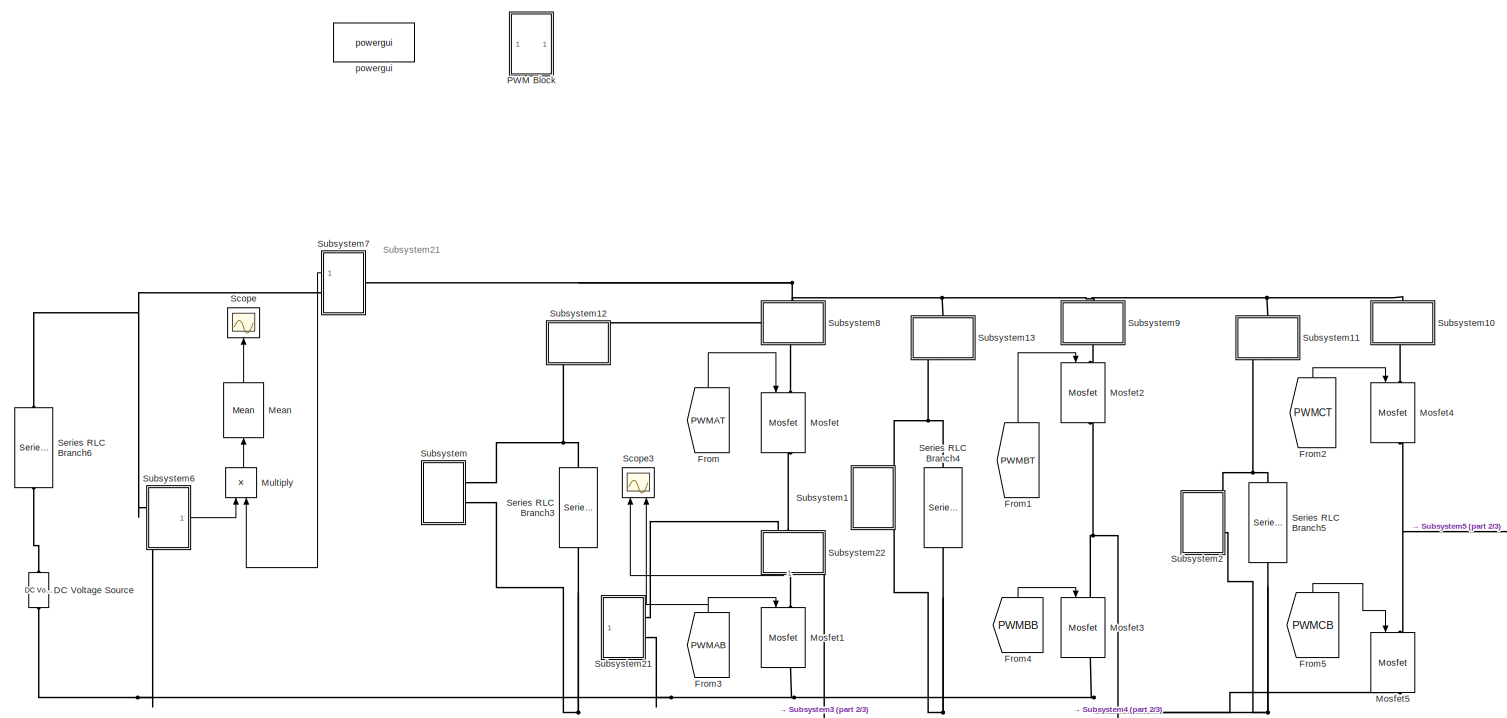
[diagram: root canvas - part 1/3, full width, top band]
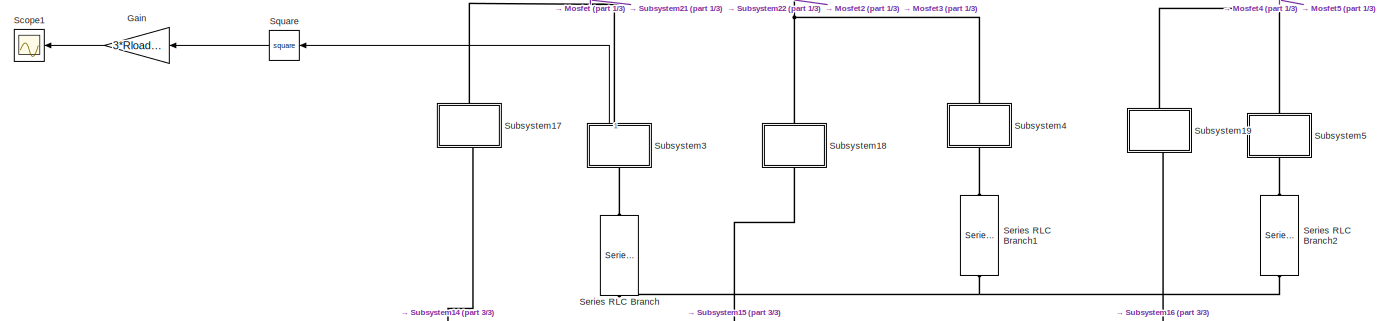
[diagram: root canvas - part 2/3, central region]
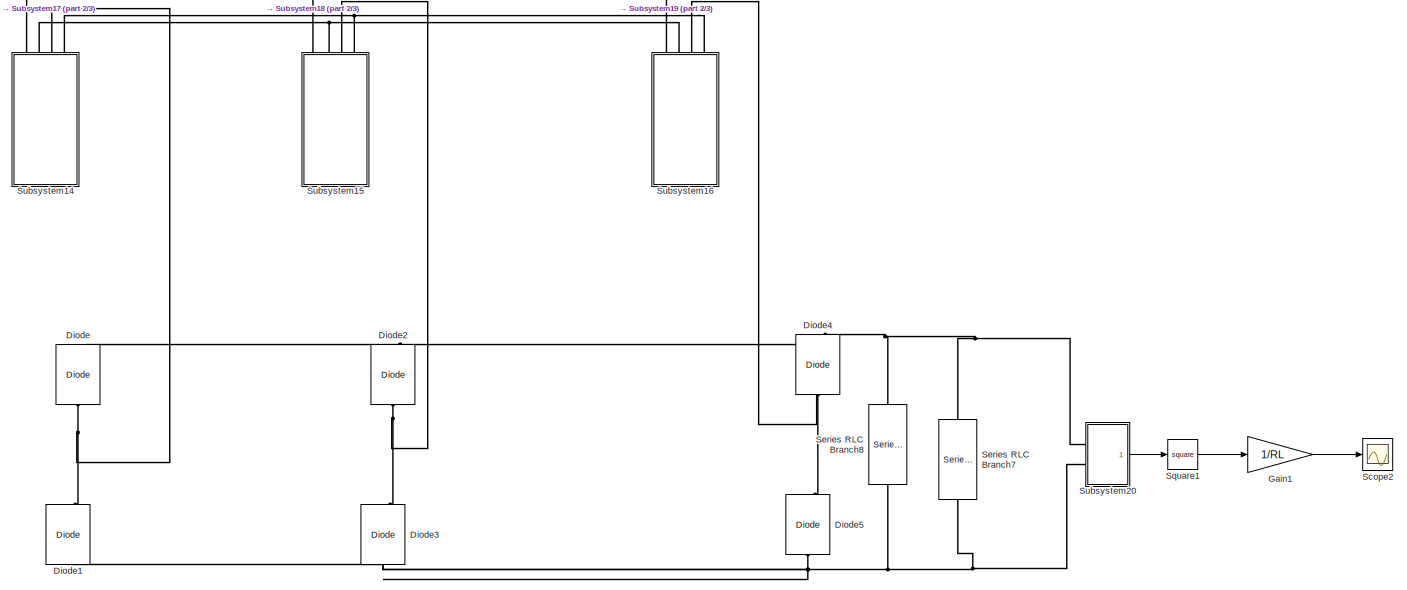
[diagram: root canvas - part 3/3, bottom center region]
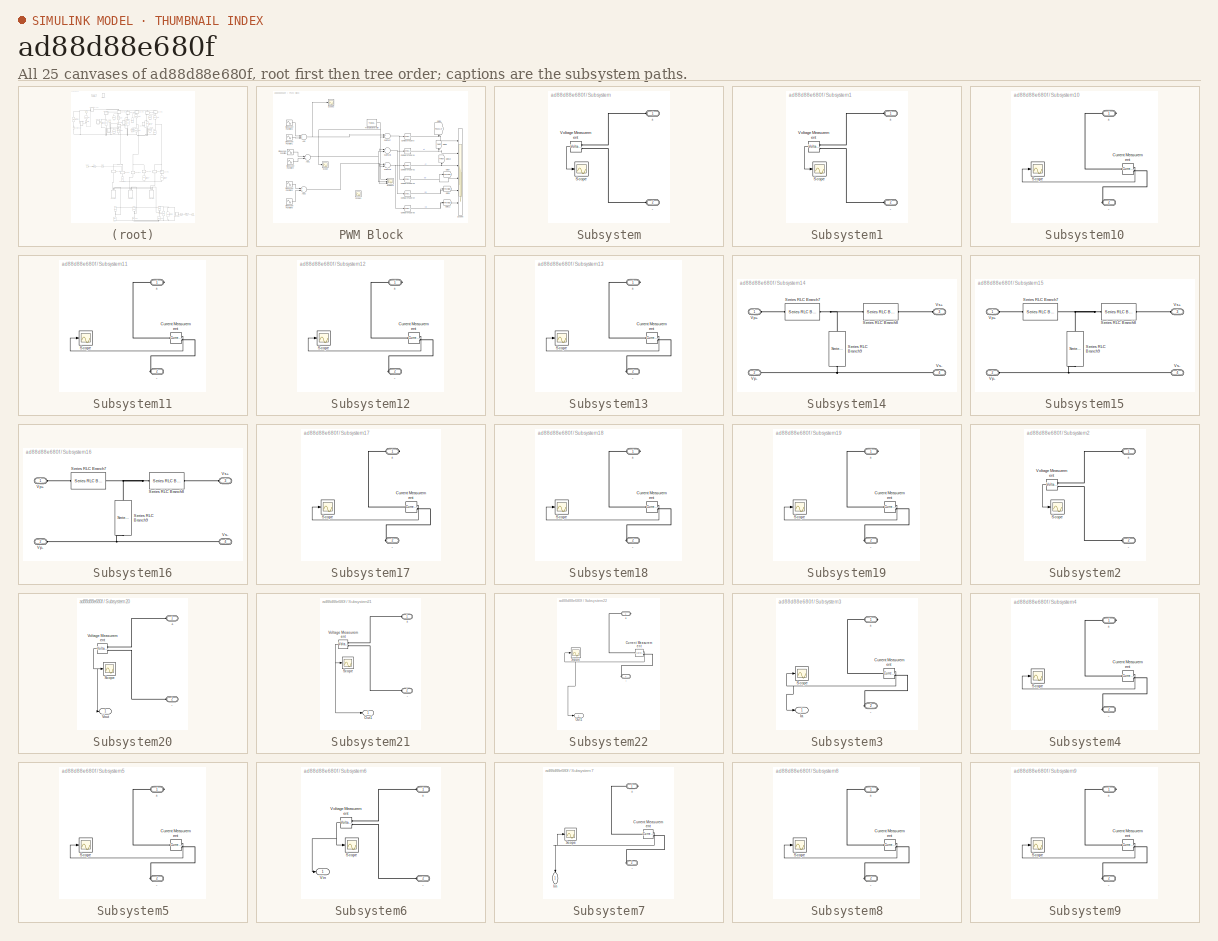
[diagram: thumbnail index - all 25 canvases of the model, root first then tree order]
MODEL slx_ad88d88e680f
KIND model
CONFIG AbsTol = auto
CONFIG EnableMultiTasking = off
CONFIG FixedStep = SampleTime
CONFIG MaxStep = auto
CONFIG MinStep = auto
CONFIG RelTol = 1e-3
CONFIG SampleTimeConstraint = Unconstrained
CONFIG Solver = FixedStepDiscrete
CONFIG SolverName = FixedStepDiscrete
CONFIG StartTime = 0.0
CONFIG StopTime = Tfinal
BLOCK [Reference] DC Voltage Source  REF=powerlib/Electrical
Sources/DC Voltage Source
  Ports = [0, 0, 0, 0, 0, 1, 1]
  SourceBlock = powerlib/Electrical\nSources/DC Voltage Source
  SourceProductBaseCode = PS
  SourceProductName = Simscape Power Systems
  SourceType = DC Voltage Source
BLOCK [Reference] Diode  REF=powerlib/Power
Electronics/Diode
  Ports = [0, 1, 0, 0, 0, 1, 1]
  SourceBlock = powerlib/Power\nElectronics/Diode
  SourceProductBaseCode = PS
  SourceProductName = Simscape Power Systems
  SourceType = Diode
BLOCK [Reference] Diode1  REF=powerlib/Power
Electronics/Diode
  Ports = [0, 1, 0, 0, 0, 1, 1]
  SourceBlock = powerlib/Power\nElectronics/Diode
  SourceProductBaseCode = PS
  SourceProductName = Simscape Power Systems
  SourceType = Diode
BLOCK [Reference] Diode2  REF=powerlib/Power
Electronics/Diode
  Ports = [0, 1, 0, 0, 0, 1, 1]
  SourceBlock = powerlib/Power\nElectronics/Diode
  SourceProductBaseCode = PS
  SourceProductName = Simscape Power Systems
  SourceType = Diode
BLOCK [Reference] Diode3  REF=powerlib/Power
Electronics/Diode
  Ports = [0, 1, 0, 0, 0, 1, 1]
  SourceBlock = powerlib/Power\nElectronics/Diode
  SourceProductBaseCode = PS
  SourceProductName = Simscape Power Systems
  SourceType = Diode
BLOCK [Reference] Diode4  REF=powerlib/Power
Electronics/Diode
  Ports = [0, 1, 0, 0, 0, 1, 1]
  SourceBlock = powerlib/Power\nElectronics/Diode
  SourceProductBaseCode = PS
  SourceProductName = Simscape Power Systems
  SourceType = Diode
BLOCK [Reference] Diode5  REF=powerlib/Power
Electronics/Diode
  Ports = [0, 1, 0, 0, 0, 1, 1]
  SourceBlock = powerlib/Power\nElectronics/Diode
  SourceProductBaseCode = PS
  SourceProductName = Simscape Power Systems
  SourceType = Diode
BLOCK [From] From
  GotoTag = PWMAT
  TagVisibility = global
BLOCK [From] From1
  GotoTag = PWMBT
  TagVisibility = global
BLOCK [From] From2
  GotoTag = PWMCT
  TagVisibility = global
BLOCK [From] From3
  GotoTag = PWMAB
  TagVisibility = global
BLOCK [From] From4
  GotoTag = PWMBB
  TagVisibility = global
BLOCK [From] From5
  GotoTag = PWMCB
  TagVisibility = global
BLOCK [Gain] Gain
  Gain = 3*Rload1/sqrt(2)
  OutDataTypeStr = Inherit: Inherit via internal rule
  ParamDataTypeStr = Inherit: Inherit via internal rule
  SaturateOnIntegerOverflow = off
BLOCK [Gain] Gain1
  Gain = 1/RL
  OutDataTypeStr = Inherit: Inherit via internal rule
  ParamDataTypeStr = Inherit: Inherit via internal rule
  SaturateOnIntegerOverflow = off
BLOCK [Reference] Mean  REF=dspstat3/Mean
  Ports = [1, 1]
  SourceBlock = dspstat3/Mean
  SourceProductBaseCode = DS
  SourceProductName = DSP System Toolbox
  SourceType = Mean
  UserDataPersistent = on
BLOCK [Reference] Mosfet  REF=powerlib/Power
Electronics/Mosfet
  Ports = [1, 1, 0, 0, 0, 1, 1]
  SourceBlock = powerlib/Power\nElectronics/Mosfet
  SourceProductBaseCode = PS
  SourceProductName = Simscape Power Systems
  SourceType = Mosfet
BLOCK [Reference] Mosfet1  REF=powerlib/Power
Electronics/Mosfet
  Ports = [1, 1, 0, 0, 0, 1, 1]
  SourceBlock = powerlib/Power\nElectronics/Mosfet
  SourceProductBaseCode = PS
  SourceProductName = Simscape Power Systems
  SourceType = Mosfet
BLOCK [Reference] Mosfet2  REF=powerlib/Power
Electronics/Mosfet
  Ports = [1, 1, 0, 0, 0, 1, 1]
  SourceBlock = powerlib/Power\nElectronics/Mosfet
  SourceProductBaseCode = PS
  SourceProductName = Simscape Power Systems
  SourceType = Mosfet
BLOCK [Reference] Mosfet3  REF=powerlib/Power
Electronics/Mosfet
  Ports = [1, 1, 0, 0, 0, 1, 1]
  SourceBlock = powerlib/Power\nElectronics/Mosfet
  SourceProductBaseCode = PS
  SourceProductName = Simscape Power Systems
  SourceType = Mosfet
BLOCK [Reference] Mosfet4  REF=powerlib/Power
Electronics/Mosfet
  Ports = [1, 1, 0, 0, 0, 1, 1]
  SourceBlock = powerlib/Power\nElectronics/Mosfet
  SourceProductBaseCode = PS
  SourceProductName = Simscape Power Systems
  SourceType = Mosfet
BLOCK [Reference] Mosfet5  REF=powerlib/Power
Electronics/Mosfet
  Ports = [1, 1, 0, 0, 0, 1, 1]
  SourceBlock = powerlib/Power\nElectronics/Mosfet
  SourceProductBaseCode = PS
  SourceProductName = Simscape Power Systems
  SourceType = Mosfet
BLOCK [Product] Multiply
  InputSameDT = off
  OutDataTypeStr = Inherit: Inherit via internal rule
  Ports = [2, 1]
  RndMeth = Floor
  SaturateOnIntegerOverflow = off
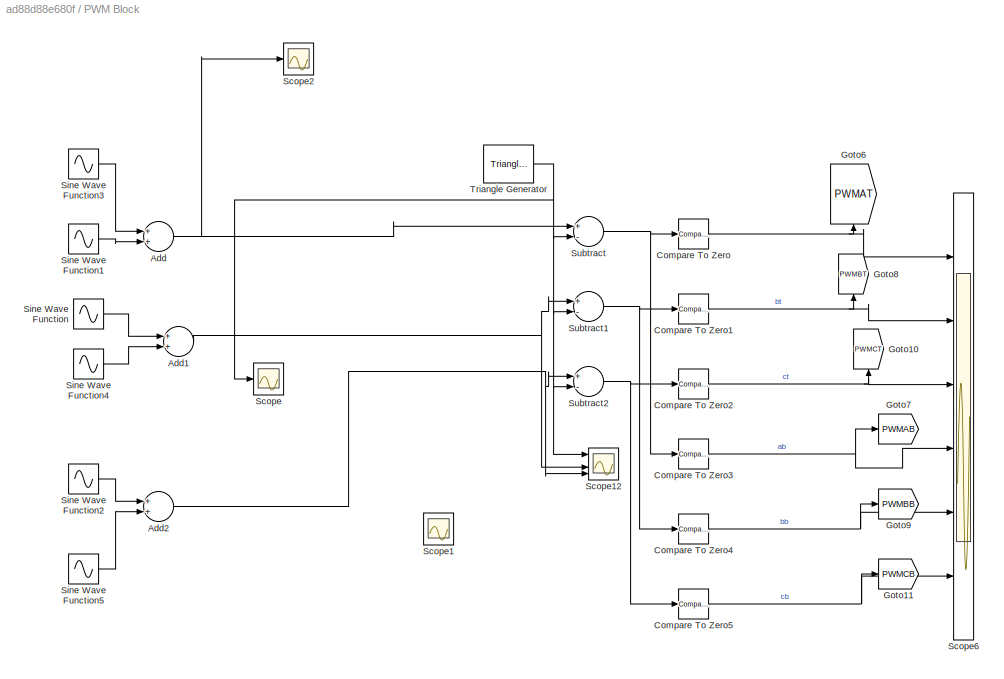
BLOCK [SubSystem] PWM Block
  Ports = []
  RequestExecContextInheritance = off
BLOCK [Sum] PWM Block/Add
  InputSameDT = off
  OutDataTypeStr = Inherit: Inherit via internal rule
  Ports = [2, 1]
  SaturateOnIntegerOverflow = off
BLOCK [Sum] PWM Block/Add1
  InputSameDT = off
  OutDataTypeStr = Inherit: Inherit via internal rule
  Ports = [2, 1]
  SaturateOnIntegerOverflow = off
BLOCK [Sum] PWM Block/Add2
  InputSameDT = off
  OutDataTypeStr = Inherit: Inherit via internal rule
  Ports = [2, 1]
  SaturateOnIntegerOverflow = off
BLOCK [Reference] PWM Block/Compare To Zero  REF=simulink/Logic and Bit
Operations/Compare
To Zero
  Ports = [1, 1]
  SourceBlock = simulink/Logic and Bit\nOperations/Compare\nTo Zero
  SourceProductBaseCode = SL
  SourceProductName = Simulink
  SourceType = Compare To Zero
BLOCK [Reference] PWM Block/Compare To Zero1  REF=simulink/Logic and Bit
Operations/Compare
To Zero
  Ports = [1, 1]
  SourceBlock = simulink/Logic and Bit\nOperations/Compare\nTo Zero
  SourceProductBaseCode = SL
  SourceProductName = Simulink
  SourceType = Compare To Zero
BLOCK [Reference] PWM Block/Compare To Zero2  REF=simulink/Logic and Bit
Operations/Compare
To Zero
  Ports = [1, 1]
  SourceBlock = simulink/Logic and Bit\nOperations/Compare\nTo Zero
  SourceProductBaseCode = SL
  SourceProductName = Simulink
  SourceType = Compare To Zero
BLOCK [Reference] PWM Block/Compare To Zero3  REF=simulink/Logic and Bit
Operations/Compare
To Zero
  Ports = [1, 1]
  SourceBlock = simulink/Logic and Bit\nOperations/Compare\nTo Zero
  SourceProductBaseCode = SL
  SourceProductName = Simulink
  SourceType = Compare To Zero
BLOCK [Reference] PWM Block/Compare To Zero4  REF=simulink/Logic and Bit
Operations/Compare
To Zero
  Ports = [1, 1]
  SourceBlock = simulink/Logic and Bit\nOperations/Compare\nTo Zero
  SourceProductBaseCode = SL
  SourceProductName = Simulink
  SourceType = Compare To Zero
BLOCK [Reference] PWM Block/Compare To Zero5  REF=simulink/Logic and Bit
Operations/Compare
To Zero
  Ports = [1, 1]
  SourceBlock = simulink/Logic and Bit\nOperations/Compare\nTo Zero
  SourceProductBaseCode = SL
  SourceProductName = Simulink
  SourceType = Compare To Zero
BLOCK [Goto] PWM Block/Goto10
  GotoTag = PWMCT
  TagVisibility = global
BLOCK [Goto] PWM Block/Goto11
  GotoTag = PWMCB
  TagVisibility = global
BLOCK [Goto] PWM Block/Goto6
  GotoTag = PWMAT
  TagVisibility = global
BLOCK [Goto] PWM Block/Goto7
  GotoTag = PWMAB
  TagVisibility = global
BLOCK [Goto] PWM Block/Goto8
  GotoTag = PWMBT
  TagVisibility = global
BLOCK [Goto] PWM Block/Goto9
  GotoTag = PWMBB
  TagVisibility = global
BLOCK [Scope] PWM Block/Scope
  Floating = off
  NumInputPorts = 1
  Ports = [1]
  ScopeSpecificationString = Simulink.scopes.TimeScopeBlockCfg('CurrentConfiguration', extmgr.ConfigurationSet(extmgr.Configuration('Core','General UI',true),extmgr.Configuration('Core','Source UI',true),extmgr.Configuration('Sources','WiredSimulink',true,'DataLoggingVariableName','ScopeData1'),extmgr.Configuration('Visuals','Time Domain',true,'SerializedDisplays',{struct('MinYLimReal','-1.01818','MaxYLimReal','1.25','YLabelR...<+1409ch>
BLOCK [Scope] PWM Block/Scope1
  Commented = on
  Floating = off
  NumInputPorts = 1
  Ports = [1]
  ScopeSpecificationString = Simulink.scopes.TimeScopeBlockCfg('CurrentConfiguration', extmgr.ConfigurationSet(extmgr.Configuration('Core','General UI',true),extmgr.Configuration('Core','Source UI',true),extmgr.Configuration('Sources','WiredSimulink',true,'DataLoggingVariableName','ScopeData2'),extmgr.Configuration('Visuals','Time Domain',true,'SerializedDisplays',{struct('MinYLimReal','-0.05124','MaxYLimReal','0.46116','YLab...<+1403ch>
BLOCK [Scope] PWM Block/Scope12
  Commented = on
  Floating = off
  NumInputPorts = 4
  Ports = [4]
  ScopeSpecificationString = Simulink.scopes.TimeScopeBlockCfg('CurrentConfiguration', extmgr.ConfigurationSet(extmgr.Configuration('Core','General UI',true),extmgr.Configuration('Core','Source UI',true),extmgr.Configuration('Sources','WiredSimulink',true,'DataLoggingVariableName','ScopeData3'),extmgr.Configuration('Visuals','Time Domain',true,'SerializedDisplays',{struct('MinYLimReal','-1.25','MaxYLimReal','1.25','YLabelReal...<+1375ch>
BLOCK [Scope] PWM Block/Scope2
  Floating = off
  NumInputPorts = 1
  Ports = [1]
  ScopeSpecificationString = Simulink.scopes.TimeScopeBlockCfg('CurrentConfiguration', extmgr.ConfigurationSet(extmgr.Configuration('Core','General UI',true),extmgr.Configuration('Core','Source UI',true),extmgr.Configuration('Sources','WiredSimulink',true,'DataLoggingVariableName','ScopeData12'),extmgr.Configuration('Visuals','Time Domain',true,'SerializedDisplays',{struct('MinYLimReal','-1.25','MaxYLimReal','1.25','YLabelRea...<+1378ch>
BLOCK [Scope] PWM Block/Scope6
  Commented = on
  Floating = off
  NumInputPorts = 6
  Ports = [6]
  ScopeSpecificationString = Simulink.scopes.TimeScopeBlockCfg('CurrentConfiguration', extmgr.ConfigurationSet(extmgr.Configuration('Core','General UI',true),extmgr.Configuration('Core','Source UI',true),extmgr.Configuration('Sources','WiredSimulink',true,'DataLoggingVariableName','ScopeData9','DataLoggingLimitDataPoints',true),extmgr.Configuration('Visuals','Time Domain',true,'SerializedDisplays',{struct('MinYLimReal','-0.12...<+5192ch>
BLOCK [Sin] PWM Block/Sine Wave Function
  Amplitude = ModulationIndex1
  Frequency = ffund*2*pi
  Phase = -2*pi/3
  Ports = [0, 1]
  SampleTime = 0
BLOCK [Sin] PWM Block/Sine Wave Function1
  Amplitude = ModulationIndex1
  Frequency = ffund*2*pi
  Ports = [0, 1]
  SampleTime = 0
BLOCK [Sin] PWM Block/Sine Wave Function2
  Amplitude = ModulationIndex1
  Frequency = ffund*2*pi
  Phase = 2*pi/3
  Ports = [0, 1]
  SampleTime = 0
BLOCK [Sin] PWM Block/Sine Wave Function3
  Amplitude = ModulationIndex2
  Frequency = fr*2*pi
  Ports = [0, 1]
  SampleTime = 0
BLOCK [Sin] PWM Block/Sine Wave Function4
  Amplitude = ModulationIndex2
  Frequency = fr*2*pi
  Phase = -2*pi/3
  Ports = [0, 1]
  SampleTime = 0
BLOCK [Sin] PWM Block/Sine Wave Function5
  Amplitude = ModulationIndex2
  Frequency = fr*2*pi
  Phase = 2*pi/3
  Ports = [0, 1]
  SampleTime = 0
BLOCK [Sum] PWM Block/Subtract
  InputSameDT = off
  Inputs = +-
  OutDataTypeStr = Inherit: Inherit via internal rule
  Ports = [2, 1]
  SaturateOnIntegerOverflow = off
BLOCK [Sum] PWM Block/Subtract1
  InputSameDT = off
  Inputs = +-
  OutDataTypeStr = Inherit: Inherit via internal rule
  Ports = [2, 1]
  SaturateOnIntegerOverflow = off
BLOCK [Sum] PWM Block/Subtract2
  InputSameDT = off
  Inputs = +-
  OutDataTypeStr = Inherit: Inherit via internal rule
  Ports = [2, 1]
  SaturateOnIntegerOverflow = off
BLOCK [Reference] PWM Block/Triangle Generator  REF=powerlib_meascontrol/Pulse & Signal
Generators/Triangle
Generator
  Ports = [0, 1]
  SourceBlock = powerlib_meascontrol/Pulse & Signal\nGenerators/Triangle\nGenerator
  SourceProductBaseCode = PS
  SourceProductName = Simscape Power Systems
  SourceType = Triangle Generator
BLOCK [Scope] Scope
  Floating = off
  NumInputPorts = 1
  Ports = [1]
  ScopeSpecificationString = Simulink.scopes.TimeScopeBlockCfg('CurrentConfiguration', extmgr.ConfigurationSet(extmgr.Configuration('Core','General UI',true),extmgr.Configuration('Core','Source UI',true),extmgr.Configuration('Sources','WiredSimulink',true,'DataLoggingVariableName','ScopeData9'),extmgr.Configuration('Visuals','Time Domain',true,'SerializedDisplays',{struct('MinYLimReal','-172.56247','MaxYLimReal','3802.22545',...<+1381ch>
BLOCK [Scope] Scope1
  Floating = off
  NumInputPorts = 1
  Ports = [1]
  ScopeSpecificationString = Simulink.scopes.TimeScopeBlockCfg('CurrentConfiguration', extmgr.ConfigurationSet(extmgr.Configuration('Core','General UI',true),extmgr.Configuration('Core','Source UI',true),extmgr.Configuration('Sources','WiredSimulink',true,'DataLoggingVariableName','ScopeData10'),extmgr.Configuration('Visuals','Time Domain',true,'SerializedDisplays',{struct('MinYLimReal','-91.55051','MaxYLimReal','823.95457','...<+1432ch>
BLOCK [Scope] Scope2
  Floating = off
  NumInputPorts = 1
  Ports = [1]
  ScopeSpecificationString = Simulink.scopes.TimeScopeBlockCfg('CurrentConfiguration', extmgr.ConfigurationSet(extmgr.Configuration('Core','General UI',true),extmgr.Configuration('Core','Source UI',true),extmgr.Configuration('Sources','WiredSimulink',true,'DataLoggingVariableName','ScopeData11'),extmgr.Configuration('Visuals','Time Domain',true,'SerializedDisplays',{struct('MinYLimReal','-305.74615','MaxYLimReal','2751.71531'...<+1439ch>
BLOCK [Scope] Scope3
  Floating = off
  NumInputPorts = 3
  Ports = [3]
  ScopeSpecificationString = Simulink.scopes.TimeScopeBlockCfg('CurrentConfiguration', extmgr.ConfigurationSet(extmgr.Configuration('Core','General UI',true),extmgr.Configuration('Core','Source UI',true),extmgr.Configuration('Sources','WiredSimulink',true,'DataLoggingVariableName','ScopeData3'),extmgr.Configuration('Visuals','Time Domain',true,'SerializedDisplays',{struct('MinYLimReal','-60.09535','MaxYLimReal','59.09529','YL...<+1472ch>
BLOCK [Reference] Series RLC Branch  REF=powerlib/Elements/Series RLC Branch
  Ports = [0, 0, 0, 0, 0, 1, 1]
  SourceBlock = powerlib/Elements/Series RLC Branch
  SourceProductBaseCode = PS
  SourceProductName = Simscape Power Systems
  SourceType = Series RLC Branch
BLOCK [Reference] Series RLC Branch1  REF=powerlib/Elements/Series RLC Branch
  Ports = [0, 0, 0, 0, 0, 1, 1]
  SourceBlock = powerlib/Elements/Series RLC Branch
  SourceProductBaseCode = PS
  SourceProductName = Simscape Power Systems
  SourceType = Series RLC Branch
BLOCK [Reference] Series RLC Branch2  REF=powerlib/Elements/Series RLC Branch
  Ports = [0, 0, 0, 0, 0, 1, 1]
  SourceBlock = powerlib/Elements/Series RLC Branch
  SourceProductBaseCode = PS
  SourceProductName = Simscape Power Systems
  SourceType = Series RLC Branch
BLOCK [Reference] Series RLC Branch3  REF=powerlib/Elements/Series RLC Branch
  Ports = [0, 0, 0, 0, 0, 1, 1]
  SourceBlock = powerlib/Elements/Series RLC Branch
  SourceProductBaseCode = PS
  SourceProductName = Simscape Power Systems
  SourceType = Series RLC Branch
BLOCK [Reference] Series RLC Branch4  REF=powerlib/Elements/Series RLC Branch
  Ports = [0, 0, 0, 0, 0, 1, 1]
  SourceBlock = powerlib/Elements/Series RLC Branch
  SourceProductBaseCode = PS
  SourceProductName = Simscape Power Systems
  SourceType = Series RLC Branch
BLOCK [Reference] Series RLC Branch5  REF=powerlib/Elements/Series RLC Branch
  Ports = [0, 0, 0, 0, 0, 1, 1]
  SourceBlock = powerlib/Elements/Series RLC Branch
  SourceProductBaseCode = PS
  SourceProductName = Simscape Power Systems
  SourceType = Series RLC Branch
BLOCK [Reference] Series RLC Branch6  REF=powerlib/Elements/Series RLC Branch
  Ports = [0, 0, 0, 0, 0, 1, 1]
  SourceBlock = powerlib/Elements/Series RLC Branch
  SourceProductBaseCode = PS
  SourceProductName = Simscape Power Systems
  SourceType = Series RLC Branch
BLOCK [Reference] Series RLC Branch7  REF=powerlib/Elements/Series RLC Branch
  Ports = [0, 0, 0, 0, 0, 1, 1]
  SourceBlock = powerlib/Elements/Series RLC Branch
  SourceProductBaseCode = PS
  SourceProductName = Simscape Power Systems
  SourceType = Series RLC Branch
BLOCK [Reference] Series RLC Branch8  REF=powerlib/Elements/Series RLC Branch
  Ports = [0, 0, 0, 0, 0, 1, 1]
  SourceBlock = powerlib/Elements/Series RLC Branch
  SourceProductBaseCode = PS
  SourceProductName = Simscape Power Systems
  SourceType = Series RLC Branch
BLOCK [Math] Square
  Operator = square
  Ports = [1, 1]
BLOCK [Math] Square1
  Operator = square
  Ports = [1, 1]
BLOCK [SubSystem] Subsystem
  Ports = [0, 0, 0, 0, 0, 2]
  RequestExecContextInheritance = off
BLOCK [PMIOPort] Subsystem/+
  Side = Left
BLOCK [PMIOPort] Subsystem/-
  Port = 2
  Side = Left
BLOCK [Scope] Subsystem/Scope
  Commented = on
  Floating = off
  NumInputPorts = 1
  Ports = [1]
  ScopeSpecificationString = Simulink.scopes.TimeScopeBlockCfg('CurrentConfiguration', extmgr.ConfigurationSet(extmgr.Configuration('Core','General UI',true),extmgr.Configuration('Core','Source UI',true),extmgr.Configuration('Sources','WiredSimulink',true,'DataLoggingVariableName','voltageA','DataLogging',true,'DataLoggingSaveFormat','Array'),extmgr.Configuration('Visuals','Time Domain',true,'SerializedDisplays',{struct('MinY...<+1441ch>
BLOCK [Reference] Subsystem/Voltage Measurement  REF=powerlib/Measurements/Voltage Measurement
  Ports = [0, 1, 0, 0, 0, 2]
  SourceBlock = powerlib/Measurements/Voltage Measurement
  SourceProductBaseCode = PS
  SourceProductName = Simscape Power Systems
  SourceType = Voltage Measurement
  UserDataPersistent = on
BLOCK [SubSystem] Subsystem1
  Ports = [0, 0, 0, 0, 0, 2]
  RequestExecContextInheritance = off
BLOCK [PMIOPort] Subsystem1/+
  Side = Left
BLOCK [PMIOPort] Subsystem1/-
  Port = 2
  Side = Left
BLOCK [Scope] Subsystem1/Scope
  Commented = on
  Floating = off
  NumInputPorts = 1
  Ports = [1]
  ScopeSpecificationString = Simulink.scopes.TimeScopeBlockCfg('CurrentConfiguration', extmgr.ConfigurationSet(extmgr.Configuration('Core','General UI',true),extmgr.Configuration('Core','Source UI',true),extmgr.Configuration('Sources','WiredSimulink',true,'DataLoggingVariableName','voltageB','DataLoggingSaveFormat','Array'),extmgr.Configuration('Visuals','Time Domain',true,'SerializedDisplays',{struct('MinYLimReal','255.94646...<+1403ch>
BLOCK [Reference] Subsystem1/Voltage Measurement  REF=powerlib/Measurements/Voltage Measurement
  Ports = [0, 1, 0, 0, 0, 2]
  SourceBlock = powerlib/Measurements/Voltage Measurement
  SourceProductBaseCode = PS
  SourceProductName = Simscape Power Systems
  SourceType = Voltage Measurement
  UserDataPersistent = on
BLOCK [SubSystem] Subsystem10
  Ports = [0, 0, 0, 0, 0, 1, 1]
  RequestExecContextInheritance = off
BLOCK [PMIOPort] Subsystem10/+
  Side = Right
BLOCK [PMIOPort] Subsystem10/-
  Port = 2
  Side = Left
BLOCK [Reference] Subsystem10/Current Measurement  REF=powerlib/Measurements/Current Measurement
  Ports = [0, 1, 0, 0, 0, 1, 1]
  SourceBlock = powerlib/Measurements/Current Measurement
  SourceProductBaseCode = PS
  SourceProductName = Simscape Power Systems
  SourceType = Current Measurement
  UserDataPersistent = on
BLOCK [Scope] Subsystem10/Scope
  Commented = on
  Floating = off
  NumInputPorts = 1
  Ports = [1]
  ScopeSpecificationString = Simulink.scopes.TimeScopeBlockCfg('CurrentConfiguration', extmgr.ConfigurationSet(extmgr.Configuration('Core','General UI',true),extmgr.Configuration('Core','Source UI',true),extmgr.Configuration('Sources','WiredSimulink',true,'DataLoggingVariableName','SCIC','DataLogging',true,'DataLoggingSaveFormat','Array'),extmgr.Configuration('Visuals','Time Domain',true,'SerializedDisplays',{struct('MinYLimR...<+1462ch>
BLOCK [SubSystem] Subsystem11
  Ports = [0, 0, 0, 0, 0, 1, 1]
  RequestExecContextInheritance = off
BLOCK [PMIOPort] Subsystem11/+
  Side = Right
BLOCK [PMIOPort] Subsystem11/-
  Port = 2
  Side = Left
BLOCK [Reference] Subsystem11/Current Measurement  REF=powerlib/Measurements/Current Measurement
  Ports = [0, 1, 0, 0, 0, 1, 1]
  SourceBlock = powerlib/Measurements/Current Measurement
  SourceProductBaseCode = PS
  SourceProductName = Simscape Power Systems
  SourceType = Current Measurement
  UserDataPersistent = on
BLOCK [Scope] Subsystem11/Scope
  Commented = on
  Floating = off
  NumInputPorts = 1
  Ports = [1]
  ScopeSpecificationString = Simulink.scopes.TimeScopeBlockCfg('CurrentConfiguration', extmgr.ConfigurationSet(extmgr.Configuration('Core','General UI',true),extmgr.Configuration('Core','Source UI',true),extmgr.Configuration('Sources','WiredSimulink',true,'DataLoggingVariableName','currentC','DataLogging',true,'DataLoggingSaveFormat','Array'),extmgr.Configuration('Visuals','Time Domain',true,'SerializedDisplays',{struct('MinY...<+1465ch>
BLOCK [SubSystem] Subsystem12
  Ports = [0, 0, 0, 0, 0, 1, 1]
  RequestExecContextInheritance = off
BLOCK [PMIOPort] Subsystem12/+
  Side = Right
BLOCK [PMIOPort] Subsystem12/-
  Port = 2
  Side = Left
BLOCK [Reference] Subsystem12/Current Measurement  REF=powerlib/Measurements/Current Measurement
  Ports = [0, 1, 0, 0, 0, 1, 1]
  SourceBlock = powerlib/Measurements/Current Measurement
  SourceProductBaseCode = PS
  SourceProductName = Simscape Power Systems
  SourceType = Current Measurement
  UserDataPersistent = on
BLOCK [Scope] Subsystem12/Scope
  Commented = on
  Floating = off
  NumInputPorts = 1
  Ports = [1]
  ScopeSpecificationString = Simulink.scopes.TimeScopeBlockCfg('CurrentConfiguration', extmgr.ConfigurationSet(extmgr.Configuration('Core','General UI',true),extmgr.Configuration('Core','Source UI',true),extmgr.Configuration('Sources','WiredSimulink',true,'DataLoggingVariableName','currentA','DataLogging',true,'DataLoggingSaveFormat','Array'),extmgr.Configuration('Visuals','Time Domain',true,'SerializedDisplays',{struct('MinY...<+1459ch>
BLOCK [SubSystem] Subsystem13
  Ports = [0, 0, 0, 0, 0, 1, 1]
  RequestExecContextInheritance = off
BLOCK [PMIOPort] Subsystem13/+
  Side = Right
BLOCK [PMIOPort] Subsystem13/-
  Port = 2
  Side = Left
BLOCK [Reference] Subsystem13/Current Measurement  REF=powerlib/Measurements/Current Measurement
  Ports = [0, 1, 0, 0, 0, 1, 1]
  SourceBlock = powerlib/Measurements/Current Measurement
  SourceProductBaseCode = PS
  SourceProductName = Simscape Power Systems
  SourceType = Current Measurement
  UserDataPersistent = on
BLOCK [Scope] Subsystem13/Scope
  Commented = on
  Floating = off
  NumInputPorts = 1
  Ports = [1]
  ScopeSpecificationString = Simulink.scopes.TimeScopeBlockCfg('CurrentConfiguration', extmgr.ConfigurationSet(extmgr.Configuration('Core','General UI',true),extmgr.Configuration('Core','Source UI',true),extmgr.Configuration('Sources','WiredSimulink',true,'DataLoggingVariableName','currentB','DataLogging',true,'DataLoggingSaveFormat','Array'),extmgr.Configuration('Visuals','Time Domain',true,'SerializedDisplays',{struct('MinY...<+1455ch>
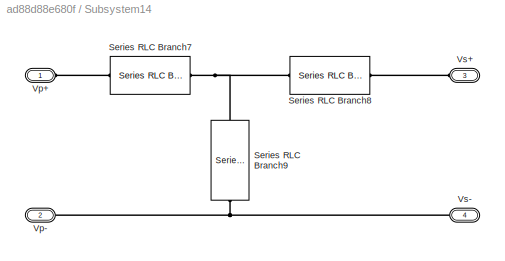
BLOCK [SubSystem] Subsystem14
  Ports = [0, 0, 0, 0, 0, 4]
  RequestExecContextInheritance = off
BLOCK [Reference] Subsystem14/Series RLC Branch7  REF=powerlib/Elements/Series RLC Branch
  Ports = [0, 0, 0, 0, 0, 1, 1]
  SourceBlock = powerlib/Elements/Series RLC Branch
  SourceProductBaseCode = PS
  SourceProductName = Simscape Power Systems
  SourceType = Series RLC Branch
BLOCK [Reference] Subsystem14/Series RLC Branch8  REF=powerlib/Elements/Series RLC Branch
  Ports = [0, 0, 0, 0, 0, 1, 1]
  SourceBlock = powerlib/Elements/Series RLC Branch
  SourceProductBaseCode = PS
  SourceProductName = Simscape Power Systems
  SourceType = Series RLC Branch
BLOCK [Reference] Subsystem14/Series RLC Branch9  REF=powerlib/Elements/Series RLC Branch
  Ports = [0, 0, 0, 0, 0, 1, 1]
  SourceBlock = powerlib/Elements/Series RLC Branch
  SourceProductBaseCode = PS
  SourceProductName = Simscape Power Systems
  SourceType = Series RLC Branch
BLOCK [PMIOPort] Subsystem14/Vp+
  Side = Left
BLOCK [PMIOPort] Subsystem14/Vp-
  Port = 2
  Side = Left
BLOCK [PMIOPort] Subsystem14/Vs+
  Port = 3
  Side = Left
BLOCK [PMIOPort] Subsystem14/Vs-
  Port = 4
  Side = Left
BLOCK [SubSystem] Subsystem15
  Ports = [0, 0, 0, 0, 0, 4]
  RequestExecContextInheritance = off
BLOCK [Reference] Subsystem15/Series RLC Branch7  REF=powerlib/Elements/Series RLC Branch
  Ports = [0, 0, 0, 0, 0, 1, 1]
  SourceBlock = powerlib/Elements/Series RLC Branch
  SourceProductBaseCode = PS
  SourceProductName = Simscape Power Systems
  SourceType = Series RLC Branch
BLOCK [Reference] Subsystem15/Series RLC Branch8  REF=powerlib/Elements/Series RLC Branch
  Ports = [0, 0, 0, 0, 0, 1, 1]
  SourceBlock = powerlib/Elements/Series RLC Branch
  SourceProductBaseCode = PS
  SourceProductName = Simscape Power Systems
  SourceType = Series RLC Branch
BLOCK [Reference] Subsystem15/Series RLC Branch9  REF=powerlib/Elements/Series RLC Branch
  Ports = [0, 0, 0, 0, 0, 1, 1]
  SourceBlock = powerlib/Elements/Series RLC Branch
  SourceProductBaseCode = PS
  SourceProductName = Simscape Power Systems
  SourceType = Series RLC Branch
BLOCK [PMIOPort] Subsystem15/Vp+
  Side = Left
BLOCK [PMIOPort] Subsystem15/Vp-
  Port = 2
  Side = Left
BLOCK [PMIOPort] Subsystem15/Vs+
  Port = 3
  Side = Left
BLOCK [PMIOPort] Subsystem15/Vs-
  Port = 4
  Side = Left
BLOCK [SubSystem] Subsystem16
  Ports = [0, 0, 0, 0, 0, 4]
  RequestExecContextInheritance = off
BLOCK [Reference] Subsystem16/Series RLC Branch7  REF=powerlib/Elements/Series RLC Branch
  Ports = [0, 0, 0, 0, 0, 1, 1]
  SourceBlock = powerlib/Elements/Series RLC Branch
  SourceProductBaseCode = PS
  SourceProductName = Simscape Power Systems
  SourceType = Series RLC Branch
BLOCK [Reference] Subsystem16/Series RLC Branch8  REF=powerlib/Elements/Series RLC Branch
  Ports = [0, 0, 0, 0, 0, 1, 1]
  SourceBlock = powerlib/Elements/Series RLC Branch
  SourceProductBaseCode = PS
  SourceProductName = Simscape Power Systems
  SourceType = Series RLC Branch
BLOCK [Reference] Subsystem16/Series RLC Branch9  REF=powerlib/Elements/Series RLC Branch
  Ports = [0, 0, 0, 0, 0, 1, 1]
  SourceBlock = powerlib/Elements/Series RLC Branch
  SourceProductBaseCode = PS
  SourceProductName = Simscape Power Systems
  SourceType = Series RLC Branch
BLOCK [PMIOPort] Subsystem16/Vp+
  Side = Left
BLOCK [PMIOPort] Subsystem16/Vp-
  Port = 2
  Side = Left
BLOCK [PMIOPort] Subsystem16/Vs+
  Port = 3
  Side = Left
BLOCK [PMIOPort] Subsystem16/Vs-
  Port = 4
  Side = Left
BLOCK [SubSystem] Subsystem17
  Ports = [0, 0, 0, 0, 0, 1, 1]
  RequestExecContextInheritance = off
BLOCK [PMIOPort] Subsystem17/+
  Side = Right
BLOCK [PMIOPort] Subsystem17/-
  Port = 2
  Side = Left
BLOCK [Reference] Subsystem17/Current Measurement  REF=powerlib/Measurements/Current Measurement
  Ports = [0, 1, 0, 0, 0, 1, 1]
  SourceBlock = powerlib/Measurements/Current Measurement
  SourceProductBaseCode = PS
  SourceProductName = Simscape Power Systems
  SourceType = Current Measurement
  UserDataPersistent = on
BLOCK [Scope] Subsystem17/Scope
  Floating = off
  NumInputPorts = 1
  Ports = [1]
  ScopeSpecificationString = Simulink.scopes.TimeScopeBlockCfg('CurrentConfiguration', extmgr.ConfigurationSet(extmgr.Configuration('Core','General UI',true),extmgr.Configuration('Core','Source UI',true),extmgr.Configuration('Sources','WiredSimulink',true,'DataLoggingVariableName','ScopeData1'),extmgr.Configuration('Visuals','Time Domain',true,'SerializedDisplays',{struct('MinYLimReal','-15.74202','MaxYLimReal','15.70381','YL...<+1384ch>
BLOCK [SubSystem] Subsystem18
  Ports = [0, 0, 0, 0, 0, 1, 1]
  RequestExecContextInheritance = off
BLOCK [PMIOPort] Subsystem18/+
  Side = Right
BLOCK [PMIOPort] Subsystem18/-
  Port = 2
  Side = Left
BLOCK [Reference] Subsystem18/Current Measurement  REF=powerlib/Measurements/Current Measurement
  Ports = [0, 1, 0, 0, 0, 1, 1]
  SourceBlock = powerlib/Measurements/Current Measurement
  SourceProductBaseCode = PS
  SourceProductName = Simscape Power Systems
  SourceType = Current Measurement
  UserDataPersistent = on
BLOCK [Scope] Subsystem18/Scope
  Floating = off
  NumInputPorts = 1
  Ports = [1]
  ScopeSpecificationString = Simulink.scopes.TimeScopeBlockCfg('CurrentConfiguration', extmgr.ConfigurationSet(extmgr.Configuration('Core','General UI',true),extmgr.Configuration('Core','Source UI',true),extmgr.Configuration('Sources','WiredSimulink',true,'DataLoggingVariableName','ScopeData2'),extmgr.Configuration('Visuals','Time Domain',true),extmgr.Configuration('Tools','Plot Navigation',true),extmgr.Configuration('Tools',...<+40ch>
BLOCK [SubSystem] Subsystem19
  Ports = [0, 0, 0, 0, 0, 1, 1]
  RequestExecContextInheritance = off
BLOCK [PMIOPort] Subsystem19/+
  Side = Right
BLOCK [PMIOPort] Subsystem19/-
  Port = 2
  Side = Left
BLOCK [Reference] Subsystem19/Current Measurement  REF=powerlib/Measurements/Current Measurement
  Ports = [0, 1, 0, 0, 0, 1, 1]
  SourceBlock = powerlib/Measurements/Current Measurement
  SourceProductBaseCode = PS
  SourceProductName = Simscape Power Systems
  SourceType = Current Measurement
  UserDataPersistent = on
BLOCK [Scope] Subsystem19/Scope
  Floating = off
  NumInputPorts = 1
  Ports = [1]
  ScopeSpecificationString = Simulink.scopes.TimeScopeBlockCfg('CurrentConfiguration', extmgr.ConfigurationSet(extmgr.Configuration('Core','General UI',true),extmgr.Configuration('Core','Source UI',true),extmgr.Configuration('Sources','WiredSimulink',true,'DataLoggingVariableName','ScopeData3'),extmgr.Configuration('Visuals','Time Domain',true),extmgr.Configuration('Tools','Plot Navigation',true),extmgr.Configuration('Tools',...<+40ch>
BLOCK [SubSystem] Subsystem2
  Ports = [0, 0, 0, 0, 0, 2]
  RequestExecContextInheritance = off
BLOCK [PMIOPort] Subsystem2/+
  Side = Left
BLOCK [PMIOPort] Subsystem2/-
  Port = 2
  Side = Left
BLOCK [Scope] Subsystem2/Scope
  Commented = on
  Floating = off
  NumInputPorts = 1
  Ports = [1]
  ScopeSpecificationString = Simulink.scopes.TimeScopeBlockCfg('CurrentConfiguration', extmgr.ConfigurationSet(extmgr.Configuration('Core','General UI',true),extmgr.Configuration('Core','Source UI',true),extmgr.Configuration('Sources','WiredSimulink',true,'DataLoggingVariableName','voltageC','DataLogging',true,'DataLoggingSaveFormat','Array'),extmgr.Configuration('Visuals','Time Domain',true,'SerializedDisplays',{struct('MinY...<+1441ch>
BLOCK [Reference] Subsystem2/Voltage Measurement  REF=powerlib/Measurements/Voltage Measurement
  Ports = [0, 1, 0, 0, 0, 2]
  SourceBlock = powerlib/Measurements/Voltage Measurement
  SourceProductBaseCode = PS
  SourceProductName = Simscape Power Systems
  SourceType = Voltage Measurement
  UserDataPersistent = on
BLOCK [SubSystem] Subsystem20
  Ports = [0, 1, 0, 0, 0, 2]
  RequestExecContextInheritance = off
BLOCK [PMIOPort] Subsystem20/+
  Side = Left
BLOCK [PMIOPort] Subsystem20/-
  Port = 2
  Side = Left
BLOCK [Scope] Subsystem20/Scope
  Floating = off
  NumInputPorts = 1
  Ports = [1]
  ScopeSpecificationString = Simulink.scopes.TimeScopeBlockCfg('CurrentConfiguration', extmgr.ConfigurationSet(extmgr.Configuration('Core','General UI',true),extmgr.Configuration('Core','Source UI',true),extmgr.Configuration('Sources','WiredSimulink',true,'DataLoggingVariableName','ScopeData4'),extmgr.Configuration('Visuals','Time Domain',true,'SerializedDisplays',{struct('MinYLimReal','-29.73394','MaxYLimReal','267.6055','YL...<+1417ch>
BLOCK [Reference] Subsystem20/Voltage Measurement  REF=powerlib/Measurements/Voltage Measurement
  Ports = [0, 1, 0, 0, 0, 2]
  SourceBlock = powerlib/Measurements/Voltage Measurement
  SourceProductBaseCode = PS
  SourceProductName = Simscape Power Systems
  SourceType = Voltage Measurement
  UserDataPersistent = on
BLOCK [Outport] Subsystem20/Vout
  IconDisplay = Port number
BLOCK [SubSystem] Subsystem21
  Ports = [0, 1, 0, 0, 0, 2]
  RequestExecContextInheritance = off
BLOCK [PMIOPort] Subsystem21/+
  Side = Left
BLOCK [PMIOPort] Subsystem21/-
  Port = 2
  Side = Left
BLOCK [Outport] Subsystem21/Out1
  IconDisplay = Port number
BLOCK [Scope] Subsystem21/Scope
  Floating = off
  NumInputPorts = 1
  Ports = [1]
  ScopeSpecificationString = Simulink.scopes.TimeScopeBlockCfg('CurrentConfiguration', extmgr.ConfigurationSet(extmgr.Configuration('Core','General UI',true),extmgr.Configuration('Core','Source UI',true),extmgr.Configuration('Sources','WiredSimulink',true,'DataLoggingVariableName','ScopeData1'),extmgr.Configuration('Visuals','Time Domain',true,'SerializedDisplays',{struct('MinYLimReal','-39.49579','MaxYLimReal','351.17334','Y...<+1388ch>
BLOCK [Reference] Subsystem21/Voltage Measurement  REF=powerlib/Measurements/Voltage Measurement
  Ports = [0, 1, 0, 0, 0, 2]
  SourceBlock = powerlib/Measurements/Voltage Measurement
  SourceProductBaseCode = PS
  SourceProductName = Simscape Power Systems
  SourceType = Voltage Measurement
  UserDataPersistent = on
BLOCK [SubSystem] Subsystem22
  Ports = [0, 1, 0, 0, 0, 1, 1]
  RequestExecContextInheritance = off
BLOCK [PMIOPort] Subsystem22/+
  Side = Right
BLOCK [PMIOPort] Subsystem22/-
  Port = 2
  Side = Left
BLOCK [Reference] Subsystem22/Current Measurement  REF=powerlib/Measurements/Current Measurement
  Ports = [0, 1, 0, 0, 0, 1, 1]
  SourceBlock = powerlib/Measurements/Current Measurement
  SourceProductBaseCode = PS
  SourceProductName = Simscape Power Systems
  SourceType = Current Measurement
  UserDataPersistent = on
BLOCK [Outport] Subsystem22/Out1
  IconDisplay = Port number
BLOCK [Scope] Subsystem22/Scope
  Floating = off
  NumInputPorts = 1
  Ports = [1]
  ScopeSpecificationString = Simulink.scopes.TimeScopeBlockCfg('CurrentConfiguration', extmgr.ConfigurationSet(extmgr.Configuration('Core','General UI',true),extmgr.Configuration('Core','Source UI',true),extmgr.Configuration('Sources','WiredSimulink',true,'DataLoggingVariableName','ScopeData2'),extmgr.Configuration('Visuals','Time Domain',true,'SerializedDisplays',{struct('MinYLimReal','-60.09535','MaxYLimReal','59.09529','YL...<+1417ch>
BLOCK [SubSystem] Subsystem3
  Ports = [0, 1, 0, 0, 0, 1, 1]
  RequestExecContextInheritance = off
BLOCK [PMIOPort] Subsystem3/+
  Side = Right
BLOCK [PMIOPort] Subsystem3/-
  Port = 2
  Side = Left
BLOCK [Reference] Subsystem3/Current Measurement  REF=powerlib/Measurements/Current Measurement
  Ports = [0, 1, 0, 0, 0, 1, 1]
  SourceBlock = powerlib/Measurements/Current Measurement
  SourceProductBaseCode = PS
  SourceProductName = Simscape Power Systems
  SourceType = Current Measurement
  UserDataPersistent = on
BLOCK [Outport] Subsystem3/Ia
  IconDisplay = Port number
BLOCK [Scope] Subsystem3/Scope
  Floating = off
  NumInputPorts = 1
  Ports = [1]
  ScopeSpecificationString = Simulink.scopes.TimeScopeBlockCfg('CurrentConfiguration', extmgr.ConfigurationSet(extmgr.Configuration('Core','General UI',true),extmgr.Configuration('Core','Source UI',true),extmgr.Configuration('Sources','WiredSimulink',true,'DataLoggingVariableName','ScopeData7'),extmgr.Configuration('Visuals','Time Domain',true,'SerializedDisplays',{struct('MinYLimReal','-30.40637','MaxYLimReal','30.40733','YL...<+1442ch>
BLOCK [SubSystem] Subsystem4
  Ports = [0, 0, 0, 0, 0, 1, 1]
  RequestExecContextInheritance = off
BLOCK [PMIOPort] Subsystem4/+
  Side = Right
BLOCK [PMIOPort] Subsystem4/-
  Port = 2
  Side = Left
BLOCK [Reference] Subsystem4/Current Measurement  REF=powerlib/Measurements/Current Measurement
  Ports = [0, 1, 0, 0, 0, 1, 1]
  SourceBlock = powerlib/Measurements/Current Measurement
  SourceProductBaseCode = PS
  SourceProductName = Simscape Power Systems
  SourceType = Current Measurement
  UserDataPersistent = on
BLOCK [Scope] Subsystem4/Scope
  Floating = off
  NumInputPorts = 1
  Ports = [1]
  ScopeSpecificationString = Simulink.scopes.TimeScopeBlockCfg('CurrentConfiguration', extmgr.ConfigurationSet(extmgr.Configuration('Core','General UI',true),extmgr.Configuration('Core','Source UI',true),extmgr.Configuration('Sources','WiredSimulink',true,'DataLoggingVariableName','ScopeData6'),extmgr.Configuration('Visuals','Time Domain',true),extmgr.Configuration('Tools','Plot Navigation',true),extmgr.Configuration('Tools',...<+40ch>
BLOCK [SubSystem] Subsystem5
  Ports = [0, 0, 0, 0, 0, 1, 1]
  RequestExecContextInheritance = off
BLOCK [PMIOPort] Subsystem5/+
  Side = Right
BLOCK [PMIOPort] Subsystem5/-
  Port = 2
  Side = Left
BLOCK [Reference] Subsystem5/Current Measurement  REF=powerlib/Measurements/Current Measurement
  Ports = [0, 1, 0, 0, 0, 1, 1]
  SourceBlock = powerlib/Measurements/Current Measurement
  SourceProductBaseCode = PS
  SourceProductName = Simscape Power Systems
  SourceType = Current Measurement
  UserDataPersistent = on
BLOCK [Scope] Subsystem5/Scope
  Floating = off
  NumInputPorts = 1
  Ports = [1]
  ScopeSpecificationString = Simulink.scopes.TimeScopeBlockCfg('CurrentConfiguration', extmgr.ConfigurationSet(extmgr.Configuration('Core','General UI',true),extmgr.Configuration('Core','Source UI',true),extmgr.Configuration('Sources','WiredSimulink',true,'DataLoggingVariableName','ScopeData5'),extmgr.Configuration('Visuals','Time Domain',true),extmgr.Configuration('Tools','Plot Navigation',true),extmgr.Configuration('Tools',...<+40ch>
BLOCK [SubSystem] Subsystem6
  Ports = [0, 1, 0, 0, 0, 2]
  RequestExecContextInheritance = off
BLOCK [PMIOPort] Subsystem6/+
  Side = Left
BLOCK [PMIOPort] Subsystem6/-
  Port = 2
  Side = Left
BLOCK [Scope] Subsystem6/Scope
  Floating = off
  NumInputPorts = 1
  Ports = [1]
  ScopeSpecificationString = Simulink.scopes.TimeScopeBlockCfg('CurrentConfiguration', extmgr.ConfigurationSet(extmgr.Configuration('Core','General UI',true),extmgr.Configuration('Core','Source UI',true),extmgr.Configuration('Sources','WiredSimulink',true,'DataLoggingVariableName','inputVoltage','DataLoggingSaveFormat','Array'),extmgr.Configuration('Visuals','Time Domain',true,'SerializedDisplays',{struct('MinYLimReal','222.3...<+1426ch>
BLOCK [Outport] Subsystem6/Vin
  IconDisplay = Port number
BLOCK [Reference] Subsystem6/Voltage Measurement  REF=powerlib/Measurements/Voltage Measurement
  Ports = [0, 1, 0, 0, 0, 2]
  SourceBlock = powerlib/Measurements/Voltage Measurement
  SourceProductBaseCode = PS
  SourceProductName = Simscape Power Systems
  SourceType = Voltage Measurement
  UserDataPersistent = on
BLOCK [SubSystem] Subsystem7
  Ports = [0, 1, 0, 0, 0, 1, 1]
  RequestExecContextInheritance = off
BLOCK [PMIOPort] Subsystem7/+
  Side = Right
BLOCK [PMIOPort] Subsystem7/-
  Port = 2
  Side = Left
BLOCK [Reference] Subsystem7/Current Measurement  REF=powerlib/Measurements/Current Measurement
  Ports = [0, 1, 0, 0, 0, 1, 1]
  SourceBlock = powerlib/Measurements/Current Measurement
  SourceProductBaseCode = PS
  SourceProductName = Simscape Power Systems
  SourceType = Current Measurement
  UserDataPersistent = on
BLOCK [Outport] Subsystem7/Iin
  IconDisplay = Port number
BLOCK [Scope] Subsystem7/Scope
  Floating = off
  NumInputPorts = 1
  Ports = [1]
  ScopeSpecificationString = Simulink.scopes.TimeScopeBlockCfg('CurrentConfiguration', extmgr.ConfigurationSet(extmgr.Configuration('Core','General UI',true),extmgr.Configuration('Core','Source UI',true),extmgr.Configuration('Sources','WiredSimulink',true,'DataLoggingVariableName','ScopeData8'),extmgr.Configuration('Visuals','Time Domain',true,'SerializedDisplays',{struct('MinYLimReal','-13.21259','MaxYLimReal','34.03573','YL...<+1403ch>
BLOCK [SubSystem] Subsystem8
  Ports = [0, 0, 0, 0, 0, 1, 1]
  RequestExecContextInheritance = off
BLOCK [PMIOPort] Subsystem8/+
  Side = Right
BLOCK [PMIOPort] Subsystem8/-
  Port = 2
  Side = Left
BLOCK [Reference] Subsystem8/Current Measurement  REF=powerlib/Measurements/Current Measurement
  Ports = [0, 1, 0, 0, 0, 1, 1]
  SourceBlock = powerlib/Measurements/Current Measurement
  SourceProductBaseCode = PS
  SourceProductName = Simscape Power Systems
  SourceType = Current Measurement
  UserDataPersistent = on
BLOCK [Scope] Subsystem8/Scope
  Commented = on
  Floating = off
  NumInputPorts = 1
  Ports = [1]
  ScopeSpecificationString = Simulink.scopes.TimeScopeBlockCfg('CurrentConfiguration', extmgr.ConfigurationSet(extmgr.Configuration('Core','General UI',true),extmgr.Configuration('Core','Source UI',true),extmgr.Configuration('Sources','WiredSimulink',true,'DataLoggingVariableName','SAIA','DataLogging',true,'DataLoggingSaveFormat','Array'),extmgr.Configuration('Visuals','Time Domain',true,'SerializedDisplays',{struct('MinYLimR...<+1507ch>
BLOCK [SubSystem] Subsystem9
  Ports = [0, 0, 0, 0, 0, 1, 1]
  RequestExecContextInheritance = off
BLOCK [PMIOPort] Subsystem9/+
  Side = Right
BLOCK [PMIOPort] Subsystem9/-
  Port = 2
  Side = Left
BLOCK [Reference] Subsystem9/Current Measurement  REF=powerlib/Measurements/Current Measurement
  Ports = [0, 1, 0, 0, 0, 1, 1]
  SourceBlock = powerlib/Measurements/Current Measurement
  SourceProductBaseCode = PS
  SourceProductName = Simscape Power Systems
  SourceType = Current Measurement
  UserDataPersistent = on
BLOCK [Scope] Subsystem9/Scope
  Commented = on
  Floating = off
  NumInputPorts = 1
  Ports = [1]
  ScopeSpecificationString = Simulink.scopes.TimeScopeBlockCfg('CurrentConfiguration', extmgr.ConfigurationSet(extmgr.Configuration('Core','General UI',true),extmgr.Configuration('Core','Source UI',true),extmgr.Configuration('Sources','WiredSimulink',true,'DataLoggingVariableName','SBIB','DataLogging',true,'DataLoggingSaveFormat','Array'),extmgr.Configuration('Visuals','Time Domain',true,'SerializedDisplays',{struct('MinYLimR...<+1461ch>
BLOCK [Reference] powergui  REF=powerlib/powergui
  Ports = []
  Priority = 1
  SourceBlock = powerlib/powergui
  SourceProductBaseCode = PS
  SourceProductName = Simscape Power Systems
  SourceType = PSB option menu block
ANNOTATION (root): Subsystem21
LINE From1:1 -> Mosfet2:1
LINE From2:1 -> Mosfet4:1
NET From3:1 -> Mosfet1:1, Scope3:3
LINE From4:1 -> Mosfet3:1
LINE From5:1 -> Mosfet5:1
LINE From:1 -> Mosfet:1
LINE Gain1:1 -> Scope2:1
LINE Gain:1 -> Scope1:1
LINE Mean:1 -> Scope:1
LINE Multiply:1 -> Mean:1
NET PWM Block/Add1:1 -> PWM Block/Scope12:3, PWM Block/Subtract1:1
NET PWM Block/Add2:1 -> PWM Block/Scope12:4, PWM Block/Subtract2:1
NET PWM Block/Add:1 -> PWM Block/Scope2:1, PWM Block/Subtract:1
NET PWM Block/Compare To Zero1:1 -> PWM Block/Goto8:1, PWM Block/Scope6:2
NET PWM Block/Compare To Zero2:1 -> PWM Block/Goto10:1, PWM Block/Scope6:3
NET PWM Block/Compare To Zero3:1 -> PWM Block/Goto7:1, PWM Block/Scope6:4
NET PWM Block/Compare To Zero4:1 -> PWM Block/Goto9:1, PWM Block/Scope6:5
NET PWM Block/Compare To Zero5:1 -> PWM Block/Goto11:1, PWM Block/Scope6:6
NET PWM Block/Compare To Zero:1 -> PWM Block/Goto6:1, PWM Block/Scope6:1
LINE PWM Block/Sine Wave Function1:1 -> PWM Block/Add:2
LINE PWM Block/Sine Wave Function2:1 -> PWM Block/Add2:1
LINE PWM Block/Sine Wave Function3:1 -> PWM Block/Add:1
LINE PWM Block/Sine Wave Function4:1 -> PWM Block/Add1:2
LINE PWM Block/Sine Wave Function5:1 -> PWM Block/Add2:2
LINE PWM Block/Sine Wave Function:1 -> PWM Block/Add1:1
NET PWM Block/Subtract1:1 -> PWM Block/Compare To Zero1:1, PWM Block/Compare To Zero4:1
NET PWM Block/Subtract2:1 -> PWM Block/Compare To Zero2:1, PWM Block/Compare To Zero5:1
NET PWM Block/Subtract:1 -> PWM Block/Compare To Zero3:1, PWM Block/Compare To Zero:1
NET PWM Block/Triangle Generator:1 -> PWM Block/Scope12:1, PWM Block/Scope:1, PWM Block/Subtract1:2, PWM Block/Subtract2:2, PWM Block/Subtract:2
LINE Square1:1 -> Gain1:1
LINE Square:1 -> Gain:1
LINE Subsystem/Voltage Measurement:1 -> Subsystem/Scope:1
LINE Subsystem1/Voltage Measurement:1 -> Subsystem1/Scope:1
LINE Subsystem10/Current Measurement:1 -> Subsystem10/Scope:1
LINE Subsystem11/Current Measurement:1 -> Subsystem11/Scope:1
LINE Subsystem12/Current Measurement:1 -> Subsystem12/Scope:1
LINE Subsystem13/Current Measurement:1 -> Subsystem13/Scope:1
LINE Subsystem17/Current Measurement:1 -> Subsystem17/Scope:1
LINE Subsystem18/Current Measurement:1 -> Subsystem18/Scope:1
LINE Subsystem19/Current Measurement:1 -> Subsystem19/Scope:1
LINE Subsystem2/Voltage Measurement:1 -> Subsystem2/Scope:1
NET Subsystem20/Voltage Measurement:1 -> Subsystem20/Scope:1, Subsystem20/Vout:1
LINE Subsystem20:1 -> Square1:1
NET Subsystem21/Voltage Measurement:1 -> Subsystem21/Out1:1, Subsystem21/Scope:1
NET Subsystem22/Current Measurement:1 -> Subsystem22/Out1:1, Subsystem22/Scope:1
LINE Subsystem22:1 -> Scope3:1
NET Subsystem3/Current Measurement:1 -> Subsystem3/Ia:1, Subsystem3/Scope:1
LINE Subsystem3:1 -> Square:1
LINE Subsystem4/Current Measurement:1 -> Subsystem4/Scope:1
LINE Subsystem5/Current Measurement:1 -> Subsystem5/Scope:1
NET Subsystem6/Voltage Measurement:1 -> Subsystem6/Scope:1, Subsystem6/Vin:1
LINE Subsystem6:1 -> Multiply:1
NET Subsystem7/Current Measurement:1 -> Subsystem7/Iin:1, Subsystem7/Scope:1
LINE Subsystem7:1 -> Multiply:2
LINE Subsystem8/Current Measurement:1 -> Subsystem8/Scope:1
LINE Subsystem9/Current Measurement:1 -> Subsystem9/Scope:1
PNET net1: DC Voltage Source:LConn1 -- Mosfet1:RConn1 -- Mosfet3:RConn1 -- Mosfet5:RConn1 -- Series RLC Branch3:RConn1 -- Series RLC Branch4:RConn1 -- Series RLC Branch5:RConn1 -- Subsystem1:LConn2 -- Subsystem21:LConn2 -- Subsystem2:LConn2 -- Subsystem6:LConn2 -- Subsystem:LConn2
PLINE DC Voltage Source:RConn1 -- Series RLC Branch6:RConn1
PNET net2: Diode1:LConn1 -- Diode3:LConn1 -- Diode5:LConn1 -- Series RLC Branch7:RConn1 -- Series RLC Branch8:RConn1 -- Subsystem20:LConn2
PNET net3: Diode1:RConn1 -- Diode:LConn1 -- Subsystem14:LConn3
PNET net4: Diode2:LConn1 -- Diode3:RConn1 -- Subsystem15:LConn3
PNET net5: Diode2:RConn1 -- Diode4:RConn1 -- Diode:RConn1 -- Series RLC Branch7:LConn1 -- Series RLC Branch8:LConn1 -- Subsystem20:LConn1
PNET net6: Diode4:LConn1 -- Diode5:RConn1 -- Subsystem16:LConn3
PLINE Mosfet1:LConn1 -- Subsystem22:RConn1
PLINE Mosfet2:LConn1 -- Subsystem9:LConn1
PNET net7: Mosfet2:RConn1 -- Mosfet3:LConn1 -- Subsystem18:RConn1 -- Subsystem4:RConn1
PLINE Mosfet4:LConn1 -- Subsystem10:LConn1
PNET net8: Mosfet4:RConn1 -- Mosfet5:LConn1 -- Subsystem19:RConn1 -- Subsystem5:RConn1
PLINE Mosfet:LConn1 -- Subsystem8:LConn1
PNET net9: Mosfet:RConn1 -- Subsystem17:RConn1 -- Subsystem21:LConn1 -- Subsystem22:LConn1 -- Subsystem3:RConn1
PLINE Series RLC Branch1:LConn1 -- Subsystem4:LConn1
PNET net10: Series RLC Branch1:RConn1 -- Series RLC Branch2:RConn1 -- Series RLC Branch:RConn1
PLINE Series RLC Branch2:LConn1 -- Subsystem5:LConn1
PNET net11: Series RLC Branch3:LConn1 -- Subsystem12:LConn1 -- Subsystem:LConn1
PNET net12: Series RLC Branch4:LConn1 -- Subsystem13:LConn1 -- Subsystem1:LConn1
PNET net13: Series RLC Branch5:LConn1 -- Subsystem11:LConn1 -- Subsystem2:LConn1
PNET net14: Series RLC Branch6:LConn1 -- Subsystem6:LConn1 -- Subsystem7:RConn1
PLINE Series RLC Branch:LConn1 -- Subsystem3:LConn1
PLINE Subsystem/+:RConn1 -- Subsystem/Voltage Measurement:LConn1
PLINE Subsystem/-:RConn1 -- Subsystem/Voltage Measurement:LConn2
PLINE Subsystem1/+:RConn1 -- Subsystem1/Voltage Measurement:LConn1
PLINE Subsystem1/-:RConn1 -- Subsystem1/Voltage Measurement:LConn2
PLINE Subsystem10/+:RConn1 -- Subsystem10/Current Measurement:LConn1
PLINE Subsystem10/-:RConn1 -- Subsystem10/Current Measurement:RConn1
PNET net15: Subsystem10:RConn1 -- Subsystem11:RConn1 -- Subsystem12:RConn1 -- Subsystem13:RConn1 -- Subsystem7:LConn1 -- Subsystem8:RConn1 -- Subsystem9:RConn1
PLINE Subsystem11/+:RConn1 -- Subsystem11/Current Measurement:LConn1
PLINE Subsystem11/-:RConn1 -- Subsystem11/Current Measurement:RConn1
PLINE Subsystem12/+:RConn1 -- Subsystem12/Current Measurement:LConn1
PLINE Subsystem12/-:RConn1 -- Subsystem12/Current Measurement:RConn1
PLINE Subsystem13/+:RConn1 -- Subsystem13/Current Measurement:LConn1
PLINE Subsystem13/-:RConn1 -- Subsystem13/Current Measurement:RConn1
PNET net16: Subsystem14/Series RLC Branch7:LConn1 -- Subsystem14/Series RLC Branch8:LConn1 -- Subsystem14/Series RLC Branch9:RConn1
PLINE Subsystem14/Series RLC Branch7:RConn1 -- Subsystem14/Vp+:RConn1
PLINE Subsystem14/Series RLC Branch8:RConn1 -- Subsystem14/Vs+:RConn1
PNET net17: Subsystem14/Series RLC Branch9:LConn1 -- Subsystem14/Vp-:RConn1 -- Subsystem14/Vs-:RConn1
PLINE Subsystem14:LConn1 -- Subsystem17:LConn1
PNET net18: Subsystem14:LConn2 -- Subsystem15:LConn2 -- Subsystem16:LConn2
PNET net19: Subsystem14:LConn4 -- Subsystem15:LConn4 -- Subsystem16:LConn4
PNET net20: Subsystem15/Series RLC Branch7:LConn1 -- Subsystem15/Series RLC Branch8:LConn1 -- Subsystem15/Series RLC Branch9:RConn1
PLINE Subsystem15/Series RLC Branch7:RConn1 -- Subsystem15/Vp+:RConn1
PLINE Subsystem15/Series RLC Branch8:RConn1 -- Subsystem15/Vs+:RConn1
PNET net21: Subsystem15/Series RLC Branch9:LConn1 -- Subsystem15/Vp-:RConn1 -- Subsystem15/Vs-:RConn1
PLINE Subsystem15:LConn1 -- Subsystem18:LConn1
PNET net22: Subsystem16/Series RLC Branch7:LConn1 -- Subsystem16/Series RLC Branch8:LConn1 -- Subsystem16/Series RLC Branch9:RConn1
PLINE Subsystem16/Series RLC Branch7:RConn1 -- Subsystem16/Vp+:RConn1
PLINE Subsystem16/Series RLC Branch8:RConn1 -- Subsystem16/Vs+:RConn1
PNET net23: Subsystem16/Series RLC Branch9:LConn1 -- Subsystem16/Vp-:RConn1 -- Subsystem16/Vs-:RConn1
PLINE Subsystem16:LConn1 -- Subsystem19:LConn1
PLINE Subsystem17/+:RConn1 -- Subsystem17/Current Measurement:LConn1
PLINE Subsystem17/-:RConn1 -- Subsystem17/Current Measurement:RConn1
PLINE Subsystem18/+:RConn1 -- Subsystem18/Current Measurement:LConn1
PLINE Subsystem18/-:RConn1 -- Subsystem18/Current Measurement:RConn1
PLINE Subsystem19/+:RConn1 -- Subsystem19/Current Measurement:LConn1
PLINE Subsystem19/-:RConn1 -- Subsystem19/Current Measurement:RConn1
PLINE Subsystem2/+:RConn1 -- Subsystem2/Voltage Measurement:LConn1
PLINE Subsystem2/-:RConn1 -- Subsystem2/Voltage Measurement:LConn2
PLINE Subsystem20/+:RConn1 -- Subsystem20/Voltage Measurement:LConn1
PLINE Subsystem20/-:RConn1 -- Subsystem20/Voltage Measurement:LConn2
PLINE Subsystem21/+:RConn1 -- Subsystem21/Voltage Measurement:LConn1
PLINE Subsystem21/-:RConn1 -- Subsystem21/Voltage Measurement:LConn2
PLINE Subsystem22/+:RConn1 -- Subsystem22/Current Measurement:LConn1
PLINE Subsystem22/-:RConn1 -- Subsystem22/Current Measurement:RConn1
PLINE Subsystem3/+:RConn1 -- Subsystem3/Current Measurement:LConn1
PLINE Subsystem3/-:RConn1 -- Subsystem3/Current Measurement:RConn1
PLINE Subsystem4/+:RConn1 -- Subsystem4/Current Measurement:LConn1
PLINE Subsystem4/-:RConn1 -- Subsystem4/Current Measurement:RConn1
PLINE Subsystem5/+:RConn1 -- Subsystem5/Current Measurement:LConn1
PLINE Subsystem5/-:RConn1 -- Subsystem5/Current Measurement:RConn1
PLINE Subsystem6/+:RConn1 -- Subsystem6/Voltage Measurement:LConn1
PLINE Subsystem6/-:RConn1 -- Subsystem6/Voltage Measurement:LConn2
PLINE Subsystem7/+:RConn1 -- Subsystem7/Current Measurement:LConn1
PLINE Subsystem7/-:RConn1 -- Subsystem7/Current Measurement:RConn1
PLINE Subsystem8/+:RConn1 -- Subsystem8/Current Measurement:LConn1
PLINE Subsystem8/-:RConn1 -- Subsystem8/Current Measurement:RConn1
PLINE Subsystem9/+:RConn1 -- Subsystem9/Current Measurement:LConn1
PLINE Subsystem9/-:RConn1 -- Subsystem9/Current Measurement:RConn1
note: NET lines group one-source signal fan-out (src -> all destinations, sorted); 1:1 wires keep LINE; PNET lines group multi-terminal physical nets as a canonical sorted terminal list (undirected conserving connections); 2-terminal nets keep the pairwise PLINE form
